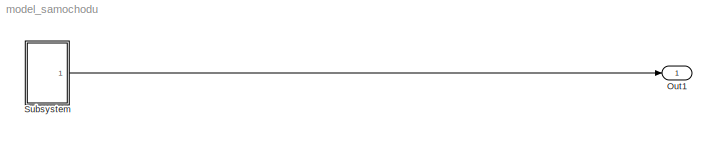
MODEL model_samochodu
BLOCK [Outport] Out1
  IconDisplay = Port number
  SID = 67
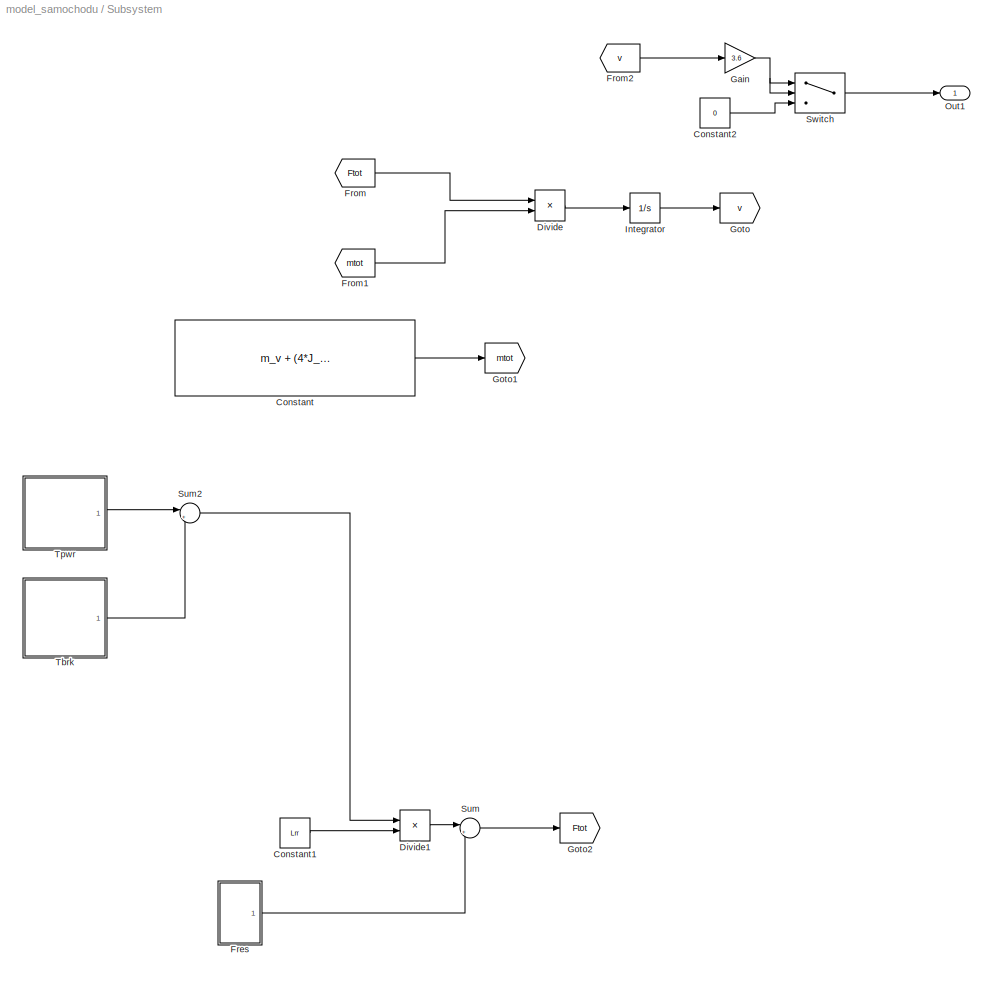
BLOCK [SubSystem] Subsystem
  Ports = [0, 1]
  RequestExecContextInheritance = off
  SID = 68
BLOCK [Constant] Subsystem/Constant
  SID = 8
  Value = m_v + (4*J_wh+J_eng*r_g*r_g*r_fdr*r_fdr)/(Lrr*Lrr)
BLOCK [Constant] Subsystem/Constant1
  SID = 22
  Value = Lrr
BLOCK [Constant] Subsystem/Constant2
  SID = 65
  Value = 0
BLOCK [Product] Subsystem/Divide
  InputSameDT = off
  Inputs = */
  OutDataTypeStr = Inherit: Inherit via internal rule
  Ports = [2, 1]
  RndMeth = Floor
  SID = 4
  SaturateOnIntegerOverflow = off
BLOCK [Product] Subsystem/Divide1
  InputSameDT = off
  Inputs = */
  OutDataTypeStr = Inherit: Inherit via internal rule
  Ports = [2, 1]
  RndMeth = Floor
  SID = 26
  SaturateOnIntegerOverflow = off
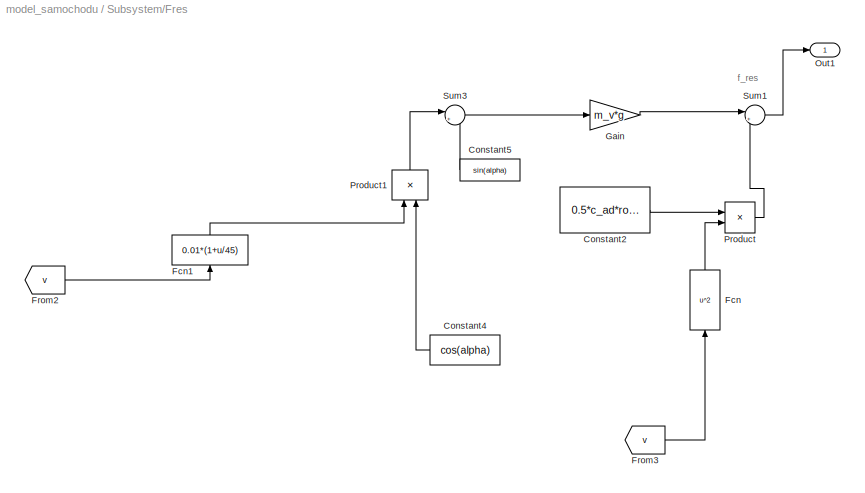
BLOCK [SubSystem] Subsystem/Fres
  Ports = [0, 1]
  RequestExecContextInheritance = off
  SID = 56
BLOCK [Constant] Subsystem/Fres/Constant2
  SID = 23
  Value = 0.5*c_ad*ro*Af
BLOCK [Constant] Subsystem/Fres/Constant4
  SID = 24
  Value = cos(alpha)
BLOCK [Constant] Subsystem/Fres/Constant5
  SID = 25
  Value = sin(alpha)
BLOCK [Fcn] Subsystem/Fres/Fcn
  Expr = u^2
  SID = 27
BLOCK [Fcn] Subsystem/Fres/Fcn1
  Expr = 0.01*(1+u/45)
  SID = 28
BLOCK [From] Subsystem/Fres/From2
  GotoTag = v
  SID = 52
  TagVisibility = global
BLOCK [From] Subsystem/Fres/From3
  GotoTag = v
  SID = 53
  TagVisibility = global
BLOCK [Gain] Subsystem/Fres/Gain
  Gain = m_v*g
  OutDataTypeStr = Inherit: Inherit via internal rule
  ParamDataTypeStr = Inherit: Inherit via internal rule
  SID = 29
  SaturateOnIntegerOverflow = off
BLOCK [Outport] Subsystem/Fres/Out1
  IconDisplay = Port number
  SID = 57
BLOCK [Product] Subsystem/Fres/Product
  InputSameDT = off
  OutDataTypeStr = Inherit: Inherit via internal rule
  Ports = [2, 1]
  RndMeth = Floor
  SID = 30
  SaturateOnIntegerOverflow = off
BLOCK [Product] Subsystem/Fres/Product1
  InputSameDT = off
  OutDataTypeStr = Inherit: Inherit via internal rule
  Ports = [2, 1]
  RndMeth = Floor
  SID = 31
  SaturateOnIntegerOverflow = off
BLOCK [Sum] Subsystem/Fres/Sum1
  IconShape = round
  InputSameDT = off
  Inputs = |++
  OutDataTypeStr = Inherit: Inherit via internal rule
  Ports = [2, 1]
  SID = 34
  SaturateOnIntegerOverflow = off
BLOCK [Sum] Subsystem/Fres/Sum3
  IconShape = round
  InputSameDT = off
  Inputs = |++
  OutDataTypeStr = Inherit: Inherit via internal rule
  Ports = [2, 1]
  SID = 36
  SaturateOnIntegerOverflow = off
BLOCK [From] Subsystem/From
  GotoTag = Ftot
  SID = 5
BLOCK [From] Subsystem/From1
  GotoTag = mtot
  SID = 6
BLOCK [From] Subsystem/From2
  GotoTag = v
  SID = 59
  TagVisibility = global
BLOCK [Gain] Subsystem/Gain
  Gain = 3.6
  OutDataTypeStr = Inherit: Inherit via internal rule
  ParamDataTypeStr = Inherit: Inherit via internal rule
  SID = 60
  SaturateOnIntegerOverflow = off
BLOCK [Goto] Subsystem/Goto
  GotoTag = v
  SID = 2
  TagVisibility = global
BLOCK [Goto] Subsystem/Goto1
  GotoTag = mtot
  SID = 7
BLOCK [Goto] Subsystem/Goto2
  GotoTag = Ftot
  SID = 51
BLOCK [Integrator] Subsystem/Integrator
  InitialCondition = v_zero
  Ports = [1, 1]
  SID = 3
BLOCK [Outport] Subsystem/Out1
  IconDisplay = Port number
  SID = 69
BLOCK [Sum] Subsystem/Sum
  IconShape = round
  InputSameDT = off
  Inputs = |+-
  OutDataTypeStr = Inherit: Inherit via internal rule
  Ports = [2, 1]
  SID = 33
  SaturateOnIntegerOverflow = off
BLOCK [Sum] Subsystem/Sum2
  IconShape = round
  InputSameDT = off
  Inputs = |+-
  OutDataTypeStr = Inherit: Inherit via internal rule
  Ports = [2, 1]
  SID = 35
  SaturateOnIntegerOverflow = off
BLOCK [Switch] Subsystem/Switch
  Criteria = u2 > Threshold
  InputSameDT = off
  SID = 64
  SaturateOnIntegerOverflow = off
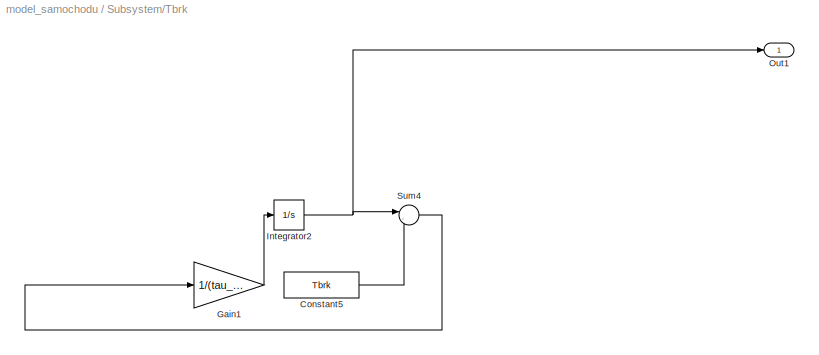
BLOCK [SubSystem] Subsystem/Tbrk
  Ports = [0, 1]
  RequestExecContextInheritance = off
  SID = 37
BLOCK [Constant] Subsystem/Tbrk/Constant5
  SID = 38
  Value = Tbrk
BLOCK [Gain] Subsystem/Tbrk/Gain1
  Gain = 1/(tau_brk)
  OutDataTypeStr = Inherit: Inherit via internal rule
  ParamDataTypeStr = Inherit: Inherit via internal rule
  SID = 39
  SaturateOnIntegerOverflow = off
BLOCK [Integrator] Subsystem/Tbrk/Integrator2
  Ports = [1, 1]
  SID = 40
BLOCK [Outport] Subsystem/Tbrk/Out1
  IconDisplay = Port number
  SID = 42
BLOCK [Sum] Subsystem/Tbrk/Sum4
  IconShape = round
  InputSameDT = off
  Inputs = |-+
  OutDataTypeStr = Inherit: Inherit via internal rule
  Ports = [2, 1]
  SID = 41
  SaturateOnIntegerOverflow = off
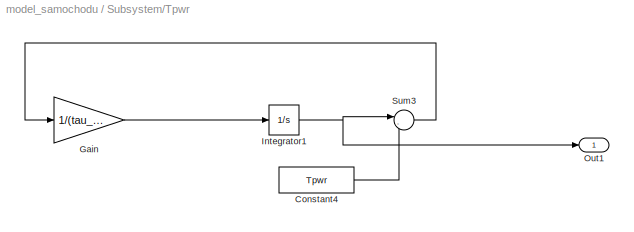
BLOCK [SubSystem] Subsystem/Tpwr
  Ports = [0, 1]
  RequestExecContextInheritance = off
  SID = 43
BLOCK [Constant] Subsystem/Tpwr/Constant4
  SID = 44
  Value = Tpwr
BLOCK [Gain] Subsystem/Tpwr/Gain
  Gain = 1/(tau_pwr)
  OutDataTypeStr = Inherit: Inherit via internal rule
  ParamDataTypeStr = Inherit: Inherit via internal rule
  SID = 45
  SaturateOnIntegerOverflow = off
BLOCK [Integrator] Subsystem/Tpwr/Integrator1
  Ports = [1, 1]
  SID = 46
BLOCK [Outport] Subsystem/Tpwr/Out1
  IconDisplay = Port number
  SID = 48
BLOCK [Sum] Subsystem/Tpwr/Sum3
  IconShape = round
  InputSameDT = off
  Inputs = |-+
  OutDataTypeStr = Inherit: Inherit via internal rule
  Ports = [2, 1]
  SID = 47
  SaturateOnIntegerOverflow = off
LINE Subsystem/Constant1:1 -> Subsystem/Divide1:2
LINE Subsystem/Constant2:1 -> Subsystem/Switch:3
LINE Subsystem/Constant:1 -> Subsystem/Goto1:1
LINE Subsystem/Divide1:1 -> Subsystem/Sum:1
LINE Subsystem/Divide:1 -> Subsystem/Integrator:1
LINE Subsystem/Fres/Constant2:1 -> Subsystem/Fres/Product:1
LINE Subsystem/Fres/Constant4:1 -> Subsystem/Fres/Product1:2
LINE Subsystem/Fres/Constant5:1 -> Subsystem/Fres/Sum3:2
LINE Subsystem/Fres/Fcn1:1 -> Subsystem/Fres/Product1:1
LINE Subsystem/Fres/Fcn:1 -> Subsystem/Fres/Product:2
LINE Subsystem/Fres/From2:1 -> Subsystem/Fres/Fcn1:1
LINE Subsystem/Fres/From3:1 -> Subsystem/Fres/Fcn:1
LINE Subsystem/Fres/Gain:1 -> Subsystem/Fres/Sum1:1
LINE Subsystem/Fres/Product1:1 -> Subsystem/Fres/Sum3:1
LINE Subsystem/Fres/Product:1 -> Subsystem/Fres/Sum1:2
LINE Subsystem/Fres/Sum1:1 -> Subsystem/Fres/Out1:1
LINE Subsystem/Fres/Sum3:1 -> Subsystem/Fres/Gain:1
LINE Subsystem/Fres:1 -> Subsystem/Sum:2
LINE Subsystem/From1:1 -> Subsystem/Divide:2
LINE Subsystem/From2:1 -> Subsystem/Gain:1
LINE Subsystem/From:1 -> Subsystem/Divide:1
LINE Subsystem/Gain:1 -> Subsystem/Switch:1
LINE Subsystem/Gain:1 -> Subsystem/Switch:2
LINE Subsystem/Integrator:1 -> Subsystem/Goto:1
LINE Subsystem/Sum2:1 -> Subsystem/Divide1:1
LINE Subsystem/Sum:1 -> Subsystem/Goto2:1
LINE Subsystem/Switch:1 -> Subsystem/Out1:1
LINE Subsystem/Tbrk/Constant5:1 -> Subsystem/Tbrk/Sum4:2
LINE Subsystem/Tbrk/Gain1:1 -> Subsystem/Tbrk/Integrator2:1
LINE Subsystem/Tbrk/Integrator2:1 -> Subsystem/Tbrk/Out1:1
LINE Subsystem/Tbrk/Integrator2:1 -> Subsystem/Tbrk/Sum4:1
LINE Subsystem/Tbrk/Sum4:1 -> Subsystem/Tbrk/Gain1:1
LINE Subsystem/Tbrk:1 -> Subsystem/Sum2:2
LINE Subsystem/Tpwr/Constant4:1 -> Subsystem/Tpwr/Sum3:2
LINE Subsystem/Tpwr/Gain:1 -> Subsystem/Tpwr/Integrator1:1
LINE Subsystem/Tpwr/Integrator1:1 -> Subsystem/Tpwr/Out1:1
LINE Subsystem/Tpwr/Integrator1:1 -> Subsystem/Tpwr/Sum3:1
LINE Subsystem/Tpwr/Sum3:1 -> Subsystem/Tpwr/Gain:1
LINE Subsystem/Tpwr:1 -> Subsystem/Sum2:1
LINE Subsystem:1 -> Out1:1
